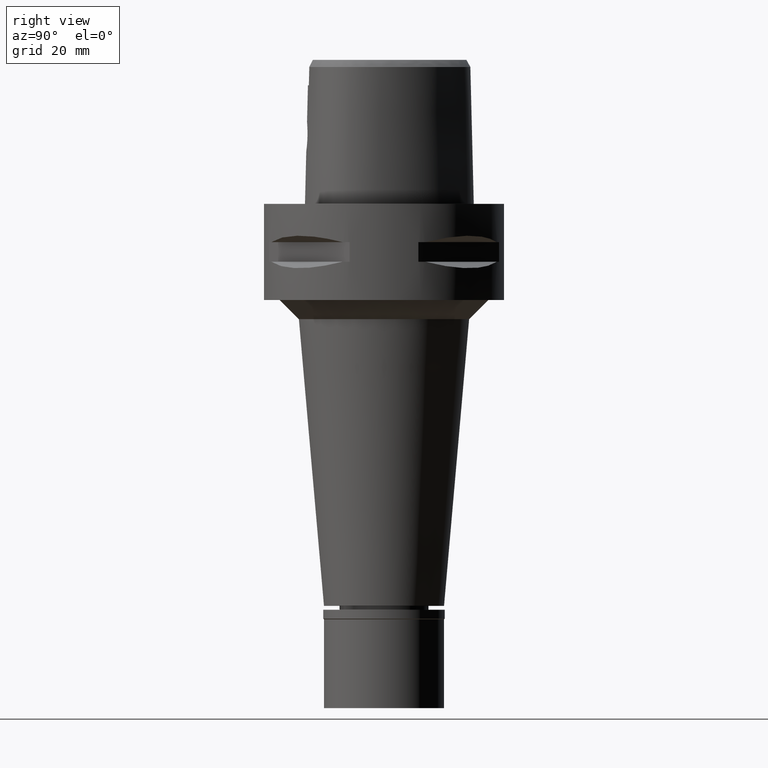
[diagram: clean part render]
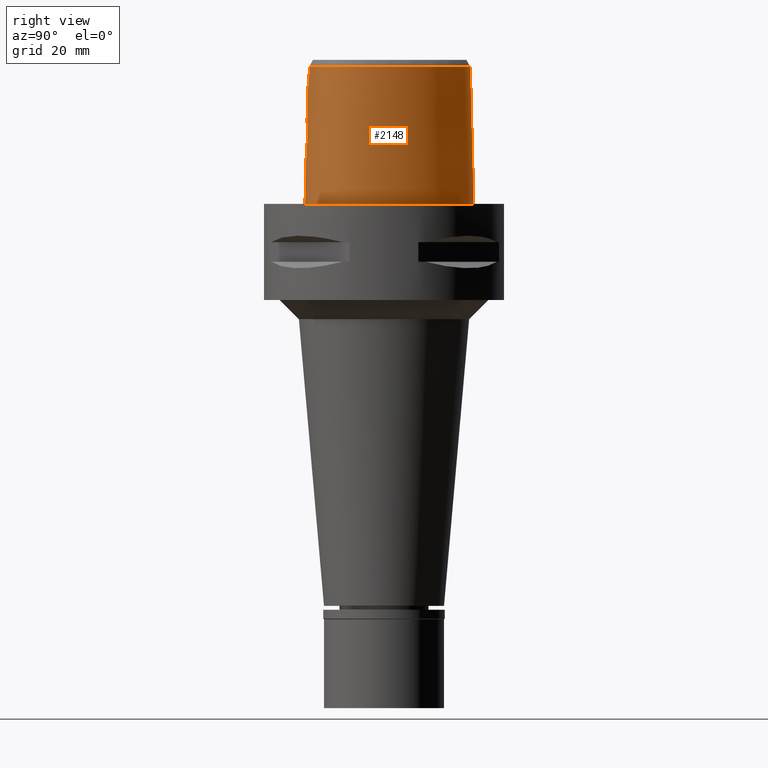
[diagram: same view with one face highlighted and labeled with its STEP entity id]
A machine part, right view. The second image highlights one B-rep face of the part: STEP entity #2148.
In plain terms, the highlighted face is a freeform B-spline surface patch.
Its self-contained STEP definition (entity closure, byte-faithful):
#17 = CARTESIAN_POINT ( 'NONE',  ( 2.196663950529426312, -15.96564993910013364, 16.11602529263612027 ) ) ;
#33 = CARTESIAN_POINT ( 'NONE',  ( -1.079551361476000171, -16.20136643864999826, 9.316773468527999924 ) ) ;
#44 = CARTESIAN_POINT ( 'NONE',  ( 2.290593162243965697, -16.06186194956454116, 11.98364703425937172 ) ) ;
#56 = CARTESIAN_POINT ( 'NONE',  ( 16.45596372243999994, -8.350972134411000170, 9.316773468527999924 ) ) ;
#68 = CARTESIAN_POINT ( 'NONE',  ( 2.744096643845215233, -16.00346064512505961, 12.66698413764604325 ) ) ;
#80 = CARTESIAN_POINT ( 'NONE',  ( 16.06260403385000046, 3.539545320991999589, 19.20396163921000010 ) ) ;
#96 = CARTESIAN_POINT ( 'NONE',  ( 16.66912846058657749, -8.445800798681265320, -1.712572970425946944E-06 ) ) ;
#100 = CARTESIAN_POINT ( 'NONE',  ( 1.893775678555451591, 17.84807068955595355, 28.52071728562181363 ) ) ;
#111 = CARTESIAN_POINT ( 'NONE',  ( 11.32630894537000010, -13.06981816489000003, 29.09114980990000277 ) ) ;
#124 = CARTESIAN_POINT ( 'NONE',  ( 11.68694518706978869, -13.70394534983113921, -1.712572970425946944E-06 ) ) ;
#132 = CARTESIAN_POINT ( 'NONE',  ( 15.78948629751999988, -9.116064163541999221, 19.20396163921000010 ) ) ;
#155 = CARTESIAN_POINT ( 'NONE',  ( 10.90668502998999934, 11.98047072297999982, 29.09114980990000277 ) ) ;
#210 = CARTESIAN_POINT ( 'NONE',  ( -0.3829342213868000555, 18.70352949264999864, -0.5704147021548000573 ) ) ;
#234 = CARTESIAN_POINT ( 'NONE',  ( -0.5293535089340000166, 17.95181569849000169, 29.09114980990000277 ) ) ;
#291 = CARTESIAN_POINT ( 'NONE',  ( -0.5593289285251999976, 18.44521839177000189, 9.316773468527999924 ) ) ;
#306 = EDGE_CURVE ( 'NONE', #4281, #4221, #4899, .T. ) ;
#331 = CARTESIAN_POINT ( 'NONE',  ( 2.030224829794000080E-07, -15.83752876601000281, 24.70000006102999990 ) ) ;
#361 = CARTESIAN_POINT ( 'NONE',  ( 2.638828814086501495, -16.01860464026841413, 12.46732066277610507 ) ) ;
#374 = CARTESIAN_POINT ( 'NONE',  ( 3.168920890822999770, -15.55911073834000113, 28.52071374672999582 ) ) ;
#385 = CARTESIAN_POINT ( 'NONE',  ( 2.076784380858851531, -16.08390063340872445, 11.76594178764124621 ) ) ;
#396 = CARTESIAN_POINT ( 'NONE',  ( 5.053620743882999200, -16.16974068493999894, -0.5704147021548000573 ) ) ;
#406 = CARTESIAN_POINT ( 'NONE',  ( 2.356615372638850125, -15.95714923954085585, 15.93698914121854315 ) ) ;
#429 = CARTESIAN_POINT ( 'NONE',  ( 2.587629427706296781, -16.02556131009806961, 12.38252332209277640 ) ) ;
#440 = CARTESIAN_POINT ( 'NONE',  ( 7.668807702640000556, 15.44980313143000039, 19.20396163921000010 ) ) ;
#451 = CARTESIAN_POINT ( 'NONE',  ( 2.130834279645530849, -16.07853149005607563, 11.81777582520600411 ) ) ;
#464 = CARTESIAN_POINT ( 'NONE',  ( 17.08644817472000099, -5.387673897245999655, 19.20396163921000010 ) ) ;
#488 = CARTESIAN_POINT ( 'NONE',  ( 4.628819261589999456, 17.52182795262000070, 9.316773468527999924 ) ) ;
#512 = CARTESIAN_POINT ( 'NONE',  ( 14.25868486921999967, -10.78027800493000221, 29.09114980990000277 ) ) ;
#527 = CARTESIAN_POINT ( 'NONE',  ( 8.702202469521859385, -14.36510984286242198, 28.52071728562181363 ) ) ;
#535 = CARTESIAN_POINT ( 'NONE',  ( 16.00353252464999798, -8.149703169692999793, 29.09114980990000277 ) ) ;
#550 = CARTESIAN_POINT ( 'NONE',  ( 5.902447799197284795, -15.16907841529120837, 28.52071728562181363 ) ) ;
#559 = ORIENTED_EDGE ( 'NONE', *, *, #701, .F. ) ;
#560 = CARTESIAN_POINT ( 'NONE',  ( 5.051093175161595283, -16.15562504237435704, -1.712572970425946944E-06 ) ) ;
#577 = CARTESIAN_POINT ( 'NONE',  ( 14.26907046693000503, -10.79012245165138495, 28.52071728562181363 ) ) ;
#588 = CARTESIAN_POINT ( 'NONE',  ( 0.0000000000000000000, -16.02877864023999877, 17.05000000000000071 ) ) ;
#600 = DIRECTION ( 'NONE',  ( -1.379466841460966450E-12, -0.02499051295371941192, -0.9996876883618752707 ) ) ;
#620 = VERTEX_POINT ( 'NONE', #3812 ) ;
#632 = CARTESIAN_POINT ( 'NONE',  ( 0.7741482008191986619, -16.02257322970520903, 16.98085959781949938 ) ) ;
#676 = VERTEX_POINT ( 'NONE', #745 ) ;
#677 = CARTESIAN_POINT ( 'NONE',  ( 6.782388194019119664E-08, -15.90128720080305769, 22.15000025259107730 ) ) ;
#701 = EDGE_CURVE ( 'NONE', #3409, #676, #3070, .T. ) ;
#727 = CARTESIAN_POINT ( 'NONE',  ( 2.223227574825688890, -16.06911398227925147, 11.90960399256264957 ) ) ;
#745 = CARTESIAN_POINT ( 'NONE',  ( 0.0000000000000000000, -16.02877864023999877, 17.05000000000000071 ) ) ;
#754 = CARTESIAN_POINT ( 'NONE',  ( 2.759961640973260355, -15.93564958624568639, 15.30749493561489061 ) ) ;
#765 = CARTESIAN_POINT ( 'NONE',  ( 1.309813751711999874, -16.25411916882000085, 9.316773468527999924 ) ) ;
#775 = CARTESIAN_POINT ( 'NONE',  ( 2.681016418395044454, -15.93974068711152547, 15.46783011061541302 ) ) ;
#795 = CARTESIAN_POINT ( 'NONE',  ( 1.935527014327847573, -16.09705987419036788, 11.64218429700401636 ) ) ;
#808 = CARTESIAN_POINT ( 'NONE',  ( 8.697311531923999084, -14.35163114142999952, 29.09114980990000277 ) ) ;
#827 = CARTESIAN_POINT ( 'NONE',  ( 3.044506884776515321, -15.94333381584075582, 13.81108558313461110 ) ) ;
#839 = CARTESIAN_POINT ( 'NONE',  ( 15.05961623353999990, -9.784614131969000539, 29.09114980990000277 ) ) ;
#842 = CARTESIAN_POINT ( 'NONE',  ( -3.094717981753000019E-11, 17.98202997909999823, 28.52071728569000086 ) ) ;
#860 = CARTESIAN_POINT ( 'NONE',  ( 7.514850653110999978, 15.25369620404999971, 29.09114980990000277 ) ) ;
#888 = CARTESIAN_POINT ( 'NONE',  ( 4.522582258493999419, 17.29581182580999865, 19.20396163921000010 ) ) ;
#915 = CARTESIAN_POINT ( 'NONE',  ( 1.890839651412000055, 17.83402853085000217, 29.09114980990000277 ) ) ;
#934 = CARTESIAN_POINT ( 'NONE',  ( 7.822764752169000246, 15.64591005881000108, 9.316773468527999924 ) ) ;
#937 = CARTESIAN_POINT ( 'NONE',  ( 1.262794661676007513, -16.00712763199256727, 16.77676499123157683 ) ) ;
#943 = ORIENTED_EDGE ( 'NONE', *, *, #2906, .T. ) ;
#952 = CARTESIAN_POINT ( 'NONE',  ( 7.967839690892272841, 15.83070315896293856, -1.712572970425946944E-06 ) ) ;
#990 = CARTESIAN_POINT ( 'NONE',  ( 3.191384142201736829, -15.58827398948734633, 27.24714251809000132 ) ) ;
#1025 = CARTESIAN_POINT ( 'NONE',  ( 0.0000000000000000000, -16.02877864023999877, 17.05000000000000071 ) ) ;
#1129 = CARTESIAN_POINT ( 'NONE',  ( 2.417729193041619151, -16.04731727844056266, 12.13798983179893654 ) ) ;
#1156 = CARTESIAN_POINT ( 'NONE',  ( 2.824468722466921378, -15.93300016794371388, 15.15105085638172078 ) ) ;
#1175 = CARTESIAN_POINT ( 'NONE',  ( 1.120763508486769089, -16.15358090583465867, 11.16333240776580382 ) ) ;
#1185 = CARTESIAN_POINT ( 'NONE',  ( 8.951632340974999380, -15.05250171780999757, -0.5704147021548000573 ) ) ;
#1199 = CARTESIAN_POINT ( 'NONE',  ( 1.306758668661503142, -16.14399373876849353, 11.23972581488374622 ) ) ;
#1212 = CARTESIAN_POINT ( 'NONE',  ( 11.47659488513999904, 12.46143684857000089, -0.5704147021548000573 ) ) ;
#1227 = CARTESIAN_POINT ( 'NONE',  ( 3.041209740384549498, -15.94490574327321575, 13.76368115324908459 ) ) ;
#1239 = CARTESIAN_POINT ( 'NONE',  ( 16.77753613662000021, -0.3562823046601999999, 29.09114980990000277 ) ) ;
#1244 = B_SPLINE_CURVE_WITH_KNOTS ( 'NONE', 3,
 ( #3374, #677, #4457, #1025 ),
 .UNSPECIFIED., .F., .F.,
 ( 4, 4 ),
 ( 0.0000000000000000000, 1.000000000000000000 ),
 .UNSPECIFIED. ) ;
#1253 = CARTESIAN_POINT ( 'NONE',  ( 17.49754716545705335, -0.2285937424829797004, -1.712572970425946944E-06 ) ) ;
#1255 = CARTESIAN_POINT ( 'NONE',  ( 3.168920890822999770, -15.55911073834000113, 28.52071374672999582 ) ) ;
#1261 = CARTESIAN_POINT ( 'NONE',  ( 17.51166498555000217, -0.2260900528497000184, -0.5704147021548000573 ) ) ;
#1285 = CARTESIAN_POINT ( 'NONE',  ( 17.47781018003999876, -3.270737581875000188, 9.316773468527999924 ) ) ;
#1314 = CARTESIAN_POINT ( 'NONE',  ( 17.17866842940000183, -7.169980044639999939, -0.5704147021548000573 ) ) ;
#1329 = CARTESIAN_POINT ( 'NONE',  ( 16.99625257117403265, -3.273868232426961900, 28.52071728562181363 ) ) ;
#1335 = CARTESIAN_POINT ( 'NONE',  ( 0.4640361004574999892, 18.23425881093000100, 19.20396163921000010 ) ) ;
#1358 = CARTESIAN_POINT ( 'NONE',  ( 1.399412083726095490, -16.00233608542867714, 16.71046994217811843 ) ) ;
#1411 = CARTESIAN_POINT ( 'NONE',  ( -0.3730031645781000105, 18.45651544109000142, 9.316773468527999924 ) ) ;
#1444 = CARTESIAN_POINT ( 'NONE',  ( -2.149496932726999772E-12, -16.18126839358999902, 10.94999999999999929 ) ) ;
#1495 = EDGE_LOOP ( 'NONE', ( #2110, #4108, #3309, #943, #4406, #559, #3206, #2147 ) ) ;
#1502 = CARTESIAN_POINT ( 'NONE',  ( 3.027798455715707160, -15.95003164277662400, 13.62032956274716966 ) ) ;
#1524 = CARTESIAN_POINT ( 'NONE',  ( 2.806282367902104280, -15.99380854387472084, 12.80500890572250405 ) ) ;
#1552 = CARTESIAN_POINT ( 'NONE',  ( 1.150837130458092217, -16.15205889506641412, 11.17544410961279056 ) ) ;
#1564 = CARTESIAN_POINT ( 'NONE',  ( -0.7074880708087000203, -15.72098110852000019, 29.09114980990000277 ) ) ;
#1575 = CARTESIAN_POINT ( 'NONE',  ( 2.141618861871738222, -16.07744231414373814, 11.82835874812550792 ) ) ;
#1587 = CARTESIAN_POINT ( 'NONE',  ( 16.84071406344000010, -5.352498112908000039, 29.09114980990000277 ) ) ;
#1602 = CARTESIAN_POINT ( 'NONE',  ( 2.044225401073498816, -16.08701963945086533, 11.73626748625702731 ) ) ;
#1614 = CARTESIAN_POINT ( 'NONE',  ( 17.26695536924000152, -0.2694874701199000411, 9.316773468527999924 ) ) ;
#1635 = CARTESIAN_POINT ( 'NONE',  ( 15.58740368722525993, -8.999391713747247223, 28.52071728562181363 ) ) ;
#1642 = CARTESIAN_POINT ( 'NONE',  ( 15.46013587366000053, -10.07579656024000059, 9.316773468527999924 ) ) ;
#1656 = CARTESIAN_POINT ( 'NONE',  ( 13.50690096135295271, -12.48264651818617565, -1.712572970425946944E-06 ) ) ;
#1662 = CARTESIAN_POINT ( 'NONE',  ( 16.46533702641000119, -6.958244285866999945, 29.09114980990000277 ) ) ;
#1673 = CARTESIAN_POINT ( 'NONE',  ( 17.71143739855751065, -3.269218749721410688, -1.712572970425946944E-06 ) ) ;
#1687 = CARTESIAN_POINT ( 'NONE',  ( 0.4897519513800999702, 18.72964555625000216, -0.5704147021548000573 ) ) ;
#1691 = CARTESIAN_POINT ( 'NONE',  ( 1.354452607727719693, -16.00396228356807526, 16.73322745257438982 ) ) ;
#1702 = CARTESIAN_POINT ( 'NONE',  ( 14.78833383517904920, -11.28232913111573588, -1.712572970425946944E-06 ) ) ;
#1736 = CARTESIAN_POINT ( 'NONE',  ( 3.235096591086000117, -15.64751801257999908, 24.70000006080999810 ) ) ;
#1850 = CARTESIAN_POINT ( 'NONE',  ( 11.69401646427999886, -13.71637917814000041, -0.5704147021548000573 ) ) ;
#1877 = CARTESIAN_POINT ( 'NONE',  ( -0.7264497208320001009, -16.46229666006999892, -0.5704147021548000573 ) ) ;
#1884 = VERTEX_POINT ( 'NONE', #2590 ) ;
#1890 = CARTESIAN_POINT ( 'NONE',  ( 1.078575942914911989, -16.15565394761469875, 11.14687127074764916 ) ) ;
#1909 = CARTESIAN_POINT ( 'NONE',  ( 7.243243713501998717E-11, 18.69499999997999851, 1.586508702188999830E-13 ) ) ;
#1911 = CARTESIAN_POINT ( 'NONE',  ( 2.164021906619612690, -15.96736812113674198, 16.14931344321803408 ) ) ;
#1920 = CARTESIAN_POINT ( 'NONE',  ( 5.009809421175999589, -15.92506881255000017, 9.316773468527999924 ) ) ;
#1935 = CARTESIAN_POINT ( 'NONE',  ( 2.775961287962938506, -15.99857004330711518, 12.73620107527709244 ) ) ;
#1960 = CARTESIAN_POINT ( 'NONE',  ( 2.014841840659067795, -15.97504399877427339, 16.29192479722134479 ) ) ;
#1973 = CARTESIAN_POINT ( 'NONE',  ( 13.05575605802000005, -11.90823712939999979, 29.09114980990000277 ) ) ;
#1986 = CARTESIAN_POINT ( 'NONE',  ( 2.829313881745447734, -15.93280562740808470, 15.13908937170597291 ) ) ;
#1998 = CARTESIAN_POINT ( 'NONE',  ( 17.22987929984000033, -3.272349403456999983, 19.20396163921000010 ) ) ;
#2014 = CARTESIAN_POINT ( 'NONE',  ( 13.75951381385860905, 7.944084035686260314, 28.52071728562181363 ) ) ;
#2023 = CARTESIAN_POINT ( 'NONE',  ( 14.79871907723000035, -11.29217324070999950, -0.5704147021548000573 ) ) ;
#2025 = VERTEX_POINT ( 'NONE', #3417 ) ;
#2031 = CARTESIAN_POINT ( 'NONE',  ( 3.235096591086000117, -15.64751801257999908, 24.70000006080999810 ) ) ;
#2049 = CARTESIAN_POINT ( 'NONE',  ( 11.09665498171000131, 12.14079276483999870, 19.20396163921000010 ) ) ;
#2065 = CARTESIAN_POINT ( 'NONE',  ( 3.738627708318751353, -15.49270856215235703, 28.52071728562181363 ) ) ;
#2071 = CARTESIAN_POINT ( 'NONE',  ( 17.33218228601000277, -5.422849681585000248, 9.316773468527999924 ) ) ;
#2095 = CARTESIAN_POINT ( 'NONE',  ( 0.4768940259187999797, 18.48195218358999981, 9.316773468527999924 ) ) ;
#2098 = CARTESIAN_POINT ( 'NONE',  ( 1.859549321997236992, -15.98255794229956273, 16.41807320997656205 ) ) ;
#2106 = VERTEX_POINT ( 'NONE', #374 ) ;
#2110 = ORIENTED_EDGE ( 'NONE', *, *, #3072, .F. ) ;
#2124 = CARTESIAN_POINT ( 'NONE',  ( 3.168920890822999770, -15.55911073834000113, 28.52071374672999582 ) ) ;
#2139 = CARTESIAN_POINT ( 'NONE',  ( -2.149496932726999772E-12, -16.18126839358999902, 10.94999999999999929 ) ) ;
#2147 = ORIENTED_EDGE ( 'NONE', *, *, #306, .T. ) ;
#2148 = ADVANCED_FACE ( 'NONE', ( #4613 ), #3416, .T. ) ;
#2198 = CARTESIAN_POINT ( 'NONE',  ( -0.3630721077694000209, 18.20950138952999708, 19.20396163921000010 ) ) ;
#2207 = EDGE_CURVE ( 'NONE', #620, #2106, #4579, .T. ) ;
#2266 = CARTESIAN_POINT ( 'NONE',  ( 0.9939297242885032357, -16.15959612542590662, 11.11569146158375077 ) ) ;
#2293 = CARTESIAN_POINT ( 'NONE',  ( 2.262444582314413033, -15.96216938760132464, 16.04565077979857790 ) ) ;
#2303 = CARTESIAN_POINT ( 'NONE',  ( 1.298308556494000010, -16.00668749134000279, 19.20396163921000010 ) ) ;
#2315 = CARTESIAN_POINT ( 'NONE',  ( 2.520317714005605225, -15.94834054842958793, 15.72060082174885132 ) ) ;
#2338 = CARTESIAN_POINT ( 'NONE',  ( 2.232748692361829157, -15.96374470980125082, 16.07819212816551513 ) ) ;
#2359 = VECTOR ( 'NONE', #3492, 1000.000000000000227 ) ;
#2367 = CARTESIAN_POINT ( 'NONE',  ( 3.048883421515427461, -15.94046337244652278, 13.90502257973829181 ) ) ;
#2378 = CARTESIAN_POINT ( 'NONE',  ( 16.94089129506999925, -7.099401458383000296, 9.316773468527999924 ) ) ;
#2393 = CARTESIAN_POINT ( 'NONE',  ( 4.422474504766133130, 17.08283549833607395, 28.52071728562181363 ) ) ;
#2402 = CARTESIAN_POINT ( 'NONE',  ( 11.28662493341999884, 12.30111480671000024, 9.316773468527999924 ) ) ;
#2428 = CARTESIAN_POINT ( 'NONE',  ( 11.57144729131000105, -13.50085884039000028, 9.316773468527999924 ) ) ;
#2450 = CARTESIAN_POINT ( 'NONE',  ( 7.523733068098669818, 15.26501041873698483, 28.52071728562181363 ) ) ;
#2456 = CARTESIAN_POINT ( 'NONE',  ( 15.66039569371999818, -10.22138777438000012, -0.5704147021548000573 ) ) ;
#2469 = CARTESIAN_POINT ( 'NONE',  ( 11.46563511313802941, 12.45218752777073590, -1.712572970425946944E-06 ) ) ;
#2472 = CARTESIAN_POINT ( 'NONE',  ( 16.79165444020004472, -0.3537785292841048035, 28.52071728562181363 ) ) ;
#2556 = CARTESIAN_POINT ( 'NONE',  ( 1.737183591012293693, -15.98828192606207743, 16.50739953107601821 ) ) ;
#2583 = EDGE_CURVE ( 'NONE', #1884, #2106, #2696, .T. ) ;
#2590 = CARTESIAN_POINT ( 'NONE',  ( -3.094717981753000019E-11, 17.98202997909999823, 28.52071728569000086 ) ) ;
#2614 = VECTOR ( 'NONE', #600, 1000.000000000000114 ) ;
#2634 = CARTESIAN_POINT ( 'NONE',  ( -1.060560759037000089, -15.70738087740999944, 29.09114980990000277 ) ) ;
#2668 = CARTESIAN_POINT ( 'NONE',  ( 3.014162081768898105, -15.95399573205361854, 13.52323755265707206 ) ) ;
#2683 = CARTESIAN_POINT ( 'NONE',  ( -0.7201291708241999157, -16.21519147622000290, 9.316773468527999924 ) ) ;
#2684 = EDGE_CURVE ( 'NONE', #3409, #4281, #3693, .T. ) ;
#2696 = B_SPLINE_CURVE_WITH_KNOTS ( 'NONE', 3,
 ( #3909, #4652, #100, #2393, #2450, #3250, #2014, #3552, #2472, #1329, #4309, #3984, #2867, #1635, #3964, #577, #4382, #4678, #527, #550, #2065, #1255 ),
 .UNSPECIFIED., .F., .F.,
 ( 4, 1, 1, 1, 1, 1, 1, 1, 1, 1, 1, 1, 1, 1, 1, 1, 1, 1, 1, 4 ),
 ( 0.0000000000000000000, 0.04404152929334096550, 0.08808305858551911116, 0.1761661171698756245, 0.2642491757542321240, 0.3523322343385886790, 0.4404152929230508162, 0.5284983515074073157, 0.5725398807995856210, 0.6165814100917637042, 0.6606229393839421205, 0.6826437040300311621, 0.7046644686762260079, 0.7266852333222094673, 0.7487059979682985089, 0.7927475272605825074, 0.8367890565527607016, 0.8808305858448333137, 0.9689136444292953954, 1.000000000000000000 ),
 .UNSPECIFIED. ) ;
#2697 = CARTESIAN_POINT ( 'NONE',  ( 2.951306861662620573, -15.92924742299003960, 14.77626636585411646 ) ) ;
#2715 = CARTESIAN_POINT ( 'NONE',  ( 2.114644142901446422, -16.08015782783983383, 11.80200641014713270 ) ) ;
#2724 = CARTESIAN_POINT ( 'NONE',  ( 8.866858737958001058, -14.81887819235000059, 9.316773468527999924 ) ) ;
#2731 = CARTESIAN_POINT ( 'NONE',  ( 2.169052010910632156, -15.77399788591396579, 24.70000016056459557 ) ) ;
#2740 = CARTESIAN_POINT ( 'NONE',  ( 2.899217746531571382, -15.97873758491098783, 13.02871175161756589 ) ) ;
#2750 = CARTESIAN_POINT ( 'NONE',  ( 15.25987605359999932, -9.930205346103999631, 19.20396163921000010 ) ) ;
#2769 = CARTESIAN_POINT ( 'NONE',  ( 3.050149896193000476, -15.93316336324772386, 14.18941404704232312 ) ) ;
#2778 = CARTESIAN_POINT ( 'NONE',  ( 13.20908634294000095, -12.10346122390000012, 19.20396163921000010 ) ) ;
#2789 = CARTESIAN_POINT ( 'NONE',  ( 7.243243713501998717E-11, 18.69499999997999851, 1.586508702188999830E-13 ) ) ;
#2791 = EDGE_CURVE ( 'NONE', #2025, #676, #1244, .T. ) ;
#2799 = CARTESIAN_POINT ( 'NONE',  ( 2.043508293084000282, 18.56419796998999772, -0.5704147021548000573 ) ) ;
#2826 = CARTESIAN_POINT ( 'NONE',  ( 16.98194841963999835, -3.273961225039000222, 29.09114980990000277 ) ) ;
#2851 = CARTESIAN_POINT ( 'NONE',  ( 16.22974812355000296, -8.250337652051999981, 19.20396163921000010 ) ) ;
#2852 = CARTESIAN_POINT ( 'NONE',  ( -1.725937783839000138E-11, -16.45500000000000185, 1.598351081118999833E-13 ) ) ;
#2866 = CARTESIAN_POINT ( 'NONE',  ( 15.64884227724995469, -10.21298830647458722, -1.712572970425946944E-06 ) ) ;
#2867 = CARTESIAN_POINT ( 'NONE',  ( 16.01658383235081473, -8.155509186612112771, 28.52071728562181363 ) ) ;
#2906 = EDGE_CURVE ( 'NONE', #620, #2025, #3702, .T. ) ;
#3040 = CARTESIAN_POINT ( 'NONE',  ( 0.3842297570381691396, -16.17878268541348064, 10.96777226348872958 ) ) ;
#3046 = CARTESIAN_POINT ( 'NONE',  ( 1.719191830015878608, -16.11523926597523726, 11.47872671523162325 ) ) ;
#3063 = CARTESIAN_POINT ( 'NONE',  ( -2.149496932726999772E-12, -16.18126839358999902, 10.94999999999999929 ) ) ;
#3070 = B_SPLINE_CURVE_WITH_KNOTS ( 'NONE', 3,
 ( #3063, #4178, #3040, #4205, #4524, #3501, #2266, #1890, #1175, #4600, #1552, #3119, #1199, #3794, #3046, #3881, #795, #4650, #1602, #385, #2715, #451, #1575, #4550, #727, #44, #1129, #4623, #429, #361, #3146, #68, #1935, #3834, #1524, #2740, #4259, #2668, #1502, #1227, #827, #2367, #3071, #2769, #4956, #3429, #2697, #4574, #4231, #4210, #4184, #1986, #1156, #3523, #754, #775, #2315, #4933, #406, #3475, #2293, #2338, #17, #3815, #3098, #1911, #3856, #1960, #3452, #2098, #4067, #2556, #4760, #3261, #1358, #1691, #937, #4390, #632, #4017, #588 ),
 .UNSPECIFIED., .F., .F.,
 ( 4, 2, 2, 1, 1, 1, 2, 2, 2, 2, 2, 1, 1, 2, 2, 2, 2, 2, 1, 2, 2, 2, 2, 2, 2, 2, 2, 1, 1, 1, 2, 2, 2, 2, 2, 1, 1, 2, 2, 2, 2, 2, 2, 2, 2, 4 ),
 ( 0.0000000000000000000, 0.06249999999999365785, 0.09374999999999047984, 0.1093749999999888700, 0.1171874999999880929, 0.1210937499999875655, 0.1230468749999872879, 0.1249999999999870243, 0.1874999999999834854, 0.2187499999999817368, 0.2343749999999807376, 0.2421874999999802935, 0.2460937499999800715, 0.2480468749999800715, 0.2499999999999800715, 0.2812499999999800715, 0.3124999999999800715, 0.3437499999999800715, 0.3593749999999800715, 0.3671874999999797939, 0.3749999999999794609, 0.4374999999999764633, 0.4687499999999749645, 0.4843749999999745204, 0.4999999999999740208, 0.5624999999999715783, 0.5937499999999700240, 0.6093749999999695799, 0.6171874999999695799, 0.6210937499999693578, 0.6230468749999693578, 0.6249999999999692468, 0.6874999999999720224, 0.7187499999999731326, 0.7343749999999737987, 0.7421874999999744649, 0.7460937499999747979, 0.7480468749999746869, 0.7499999999999745759, 0.7812499999999784617, 0.7968749999999800160, 0.8124999999999814593, 0.8437499999999846789, 0.8593749999999861222, 0.8749999999999873435, 1.000000000000000000 ),
 .UNSPECIFIED. ) ;
#3071 = CARTESIAN_POINT ( 'NONE',  ( 3.049961347112721377, -15.93921296701097923, 13.94964838113523165 ) ) ;
#3072 = EDGE_CURVE ( 'NONE', #1884, #4221, #4155, .T. ) ;
#3087 = CARTESIAN_POINT ( 'NONE',  ( -0.7138086208164999835, -15.96808629236999977, 19.20396163921000010 ) ) ;
#3098 = CARTESIAN_POINT ( 'NONE',  ( 2.170299400654050359, -15.96703807926083307, 16.14297866672072601 ) ) ;
#3109 = CARTESIAN_POINT ( 'NONE',  ( 4.922186775760000188, -15.43572506775999997, 29.09114980990000277 ) ) ;
#3119 = CARTESIAN_POINT ( 'NONE',  ( 1.158353828547319386, -16.15167258786864579, 11.17852165137631992 ) ) ;
#3129 = CARTESIAN_POINT ( 'NONE',  ( 13.74710207065999867, 7.936918613051998861, 29.09114980990000277 ) ) ;
#3146 = CARTESIAN_POINT ( 'NONE',  ( 2.709953204667776117, -16.00846021379442874, 12.59958595632848066 ) ) ;
#3156 = CARTESIAN_POINT ( 'NONE',  ( 14.39249255232000024, 8.309508948762999836, -0.5704147021548000573 ) ) ;
#3174 = CARTESIAN_POINT ( 'NONE',  ( 4.728927225217471886, 17.73480472664720864, -1.712572970425946944E-06 ) ) ;
#3183 = CARTESIAN_POINT ( 'NONE',  ( 16.70311416074000022, -7.028822872124999677, 19.20396163921000010 ) ) ;
#3205 = CARTESIAN_POINT ( 'NONE',  ( 14.61870767455999953, -11.12154149544999981, 9.316773468527999924 ) ) ;
#3206 = ORIENTED_EDGE ( 'NONE', *, *, #2684, .T. ) ;
#3219 = CARTESIAN_POINT ( 'NONE',  ( 16.51672828830004036, 3.703437514615576021, -1.712572970425946944E-06 ) ) ;
#3230 = CARTESIAN_POINT ( 'NONE',  ( 16.21839714802000287, -9.363695959252000378, -0.5704147021548000573 ) ) ;
#3250 = CARTESIAN_POINT ( 'NONE',  ( 10.91764517732670825, 11.98972036053689827, 28.52071728562181363 ) ) ;
#3261 = CARTESIAN_POINT ( 'NONE',  ( 1.531589067142498983, -15.99732691922906724, 16.63945844436470622 ) ) ;
#3309 = ORIENTED_EDGE ( 'NONE', *, *, #2207, .F. ) ;
#3334 = CARTESIAN_POINT ( 'NONE',  ( 0.4511781749961999988, 17.98656543826999865, 29.09114980990000277 ) ) ;
#3374 = CARTESIAN_POINT ( 'NONE',  ( 2.030224829794000080E-07, -15.83752876601000281, 24.70000006102999990 ) ) ;
#3409 = VERTEX_POINT ( 'NONE', #1444 ) ;
#3416 = B_SPLINE_SURFACE_WITH_KNOTS ( 'NONE', 3, 3, ( 
 ( #3488, #33, #3440, #2634 ),
 ( #1877, #2683, #3087, #1564 ),
 ( #4200, #765, #2303, #3823 ),
 ( #396, #1920, #3462, #3109 ),
 ( #1185, #2724, #4243, #808 ),
 ( #1850, #2428, #3533, #111 ),
 ( #3512, #4272, #2778, #1973 ),
 ( #2023, #3205, #4731, #512 ),
 ( #2456, #1642, #2750, #839 ),
 ( #3230, #3560, #132, #3970 ),
 ( #3893, #56, #2851, #535 ),
 ( #1314, #2378, #3183, #1662 ),
 ( #4363, #2071, #464, #1587 ),
 ( #4684, #1285, #1998, #2826 ),
 ( #1261, #1614, #3943, #1239 ),
 ( #3870, #3604, #80, #4635 ),
 ( #3156, #4662, #4706, #3129 ),
 ( #1212, #2402, #2049, #155 ),
 ( #4295, #934, #440, #860 ),
 ( #3918, #488, #888, #3583 ),
 ( #2799, #4316, #4340, #915 ),
 ( #1687, #2095, #1335, #3334 ),
 ( #210, #1411, #2198, #4065 ),
 ( #3729, #291, #4014, #234 ) ),
 .UNSPECIFIED., .F., .F., .F.,
 ( 4, 1, 1, 1, 1, 1, 1, 1, 1, 1, 1, 1, 1, 1, 1, 1, 1, 1, 1, 1, 1, 4 ),
 ( 4, 4 ),
 ( -0.01796851319148999940, 0.0000000000000000000, 0.08333333333350000094, 0.1666666666668000230, 0.2083333333333000081, 0.2499999999998999967, 0.2916666666666000163, 0.3124999999998999689, 0.3333333333331000015, 0.3541666666665000407, 0.3749999999997999933, 0.4166666666664000096, 0.4583333333330000259, 0.4999999999995999866, 0.5833333333328000192, 0.6666666666660999718, 0.7499999999993000044, 0.8333333333325000369, 0.9166666666657000695, 0.9583333333322999747, 1.000000000000000000, 1.011711214084999977 ),
 ( 9.489618570112998860E-10, 0.9999999516029000057 ),
 .UNSPECIFIED. ) ;
#3417 = CARTESIAN_POINT ( 'NONE',  ( 2.030224829794000080E-07, -15.83752876601000281, 24.70000006102999990 ) ) ;
#3429 = CARTESIAN_POINT ( 'NONE',  ( 2.975249651912822646, -15.92914271478721666, 14.67846616982686925 ) ) ;
#3440 = CARTESIAN_POINT ( 'NONE',  ( -1.070056060256000086, -15.95437365802999885, 19.20396163921000010 ) ) ;
#3452 = CARTESIAN_POINT ( 'NONE',  ( 1.898958778535287051, -15.98067541706731731, 16.38724889510307392 ) ) ;
#3462 = CARTESIAN_POINT ( 'NONE',  ( 4.965998098467999888, -15.68039694016000141, 19.20396163921000010 ) ) ;
#3475 = CARTESIAN_POINT ( 'NONE',  ( 2.320231428406521079, -15.95909571851455588, 15.98050410814317424 ) ) ;
#3488 = CARTESIAN_POINT ( 'NONE',  ( -1.089046662694999945, -16.44835921925999855, -0.5704147021548000573 ) ) ;
#3492 = DIRECTION ( 'NONE',  ( 3.623588048647890083E-12, 0.02499051285796925065, -0.9996876883642689116 ) ) ;
#3501 = CARTESIAN_POINT ( 'NONE',  ( 0.9209982704662519337, -16.16262558226604540, 11.09193420934339436 ) ) ;
#3512 = CARTESIAN_POINT ( 'NONE',  ( 13.51574691276999829, -12.49390941289999901, -0.5704147021548000573 ) ) ;
#3523 = CARTESIAN_POINT ( 'NONE',  ( 2.821425036078518467, -15.93312409536605578, 15.15848376097718031 ) ) ;
#3533 = CARTESIAN_POINT ( 'NONE',  ( 11.44887811833999969, -13.28533850264000016, 19.20396163921000010 ) ) ;
#3552 = CARTESIAN_POINT ( 'NONE',  ( 15.84228676733575192, 3.460033425849186273, 28.52071728562181363 ) ) ;
#3560 = CARTESIAN_POINT ( 'NONE',  ( 16.00394172277000138, -9.239880061397000688, 9.316773468527999924 ) ) ;
#3583 = CARTESIAN_POINT ( 'NONE',  ( 4.416345255398000269, 17.06979569900000016, 29.09114980990000277 ) ) ;
#3604 = CARTESIAN_POINT ( 'NONE',  ( 16.29641055984999909, 3.623925452757999821, 9.316773468527999924 ) ) ;
#3693 = LINE ( 'NONE', #2139, #2614 ) ;
#3702 = B_SPLINE_CURVE_WITH_KNOTS ( 'NONE', 3,
 ( #2031, #2731, #3924, #331 ),
 .UNSPECIFIED., .F., .F.,
 ( 4, 4 ),
 ( 0.0000000000000000000, 1.000000000000000000 ),
 .UNSPECIFIED. ) ;
#3729 = CARTESIAN_POINT ( 'NONE',  ( -0.5743166383208000436, 18.69191973840999665, -0.5704147021548000573 ) ) ;
#3794 = CARTESIAN_POINT ( 'NONE',  ( 1.466707760578695563, -16.13401281180648184, 11.31839107165520630 ) ) ;
#3812 = CARTESIAN_POINT ( 'NONE',  ( 3.235096591086000117, -15.64751801257999908, 24.70000006080999810 ) ) ;
#3815 = CARTESIAN_POINT ( 'NONE',  ( 2.180887052763814893, -15.96648089881372279, 16.13220278528723028 ) ) ;
#3823 = CARTESIAN_POINT ( 'NONE',  ( 1.286803361277000013, -15.75925581387000207, 29.09114980990000277 ) ) ;
#3834 = CARTESIAN_POINT ( 'NONE',  ( 2.796681338616599621, -15.99533385695102439, 12.78273984513034378 ) ) ;
#3856 = CARTESIAN_POINT ( 'NONE',  ( 2.088968113521981529, -15.97131126311717608, 16.22457167555463897 ) ) ;
#3870 = CARTESIAN_POINT ( 'NONE',  ( 16.53021708583999683, 3.708305584525000143, -0.5704147021548000573 ) ) ;
#3881 = CARTESIAN_POINT ( 'NONE',  ( 1.805376232587378116, -16.10834772480010813, 11.53923680359976878 ) ) ;
#3893 = CARTESIAN_POINT ( 'NONE',  ( 16.68217932134000137, -8.451606616771000446, -0.5704147021548000573 ) ) ;
#3906 = CARTESIAN_POINT ( 'NONE',  ( 2.040572366481876454, 18.55015629216421402, -1.712572970425946944E-06 ) ) ;
#3909 = CARTESIAN_POINT ( 'NONE',  ( -3.094717981753000019E-11, 17.98202997909999823, 28.52071728569000086 ) ) ;
#3918 = CARTESIAN_POINT ( 'NONE',  ( 4.735056264687000471, 17.74784407942999920, -0.5704147021548000573 ) ) ;
#3924 = CARTESIAN_POINT ( 'NONE',  ( 1.084489111476547585, -15.83754148653971860, 24.70000016056459557 ) ) ;
#3943 = CARTESIAN_POINT ( 'NONE',  ( 17.02224575293000086, -0.3128848873899999772, 19.20396163921000010 ) ) ;
#3964 = CARTESIAN_POINT ( 'NONE',  ( 15.07117004567507834, -9.793013887527203920, 28.52071728562181363 ) ) ;
#3970 = CARTESIAN_POINT ( 'NONE',  ( 15.57503087227999927, -8.992248265686999531, 29.09114980990000277 ) ) ;
#3983 = CARTESIAN_POINT ( 'NONE',  ( 14.38008123416606487, 8.302343771511633719, -1.712572970425946944E-06 ) ) ;
#3984 = CARTESIAN_POINT ( 'NONE',  ( 16.47905536661046710, -6.962316254603114096, 28.52071728562181363 ) ) ;
#3992 = CARTESIAN_POINT ( 'NONE',  ( 1.683697725056120698, -16.45500004281124262, -1.712572970425946733E-06 ) ) ;
#4014 = CARTESIAN_POINT ( 'NONE',  ( -0.5443412187296000626, 18.19851704513000001, 19.20396163921000010 ) ) ;
#4017 = CARTESIAN_POINT ( 'NONE',  ( 0.3724840145390407309, -16.02877864023999877, 17.04999999999999361 ) ) ;
#4065 = CARTESIAN_POINT ( 'NONE',  ( -0.3531410509606999759, 17.96248733796999986, 29.09114980990000277 ) ) ;
#4067 = CARTESIAN_POINT ( 'NONE',  ( 1.779262221764184693, -15.98633376436653464, 16.47774649146145620 ) ) ;
#4108 = ORIENTED_EDGE ( 'NONE', *, *, #2583, .T. ) ;
#4155 = LINE ( 'NONE', #842, #2359 ) ;
#4178 = CARTESIAN_POINT ( 'NONE',  ( 0.1898211197373668446, -16.18126839358999902, 10.94999999999999751 ) ) ;
#4184 = CARTESIAN_POINT ( 'NONE',  ( 2.836520581861567081, -15.93251973351802242, 15.12113420123081298 ) ) ;
#4200 = CARTESIAN_POINT ( 'NONE',  ( 1.321318946929000093, -16.50155084629000157, -0.5704147021548000573 ) ) ;
#4205 = CARTESIAN_POINT ( 'NONE',  ( 0.6770584128772033639, -16.17132556088388995, 11.02443681068311676 ) ) ;
#4210 = CARTESIAN_POINT ( 'NONE',  ( 2.852909278454516251, -15.93189406616819781, 15.07915126970514486 ) ) ;
#4221 = VERTEX_POINT ( 'NONE', #1909 ) ;
#4229 = CARTESIAN_POINT ( 'NONE',  ( -1.725937783839000138E-11, -16.45500000000000185, 1.598351081118999833E-13 ) ) ;
#4231 = CARTESIAN_POINT ( 'NONE',  ( 2.883981873338816282, -15.93080840504316598, 14.99485968243841150 ) ) ;
#4243 = CARTESIAN_POINT ( 'NONE',  ( 8.782085134941000959, -14.58525466689000005, 19.20396163921000010 ) ) ;
#4259 = CARTESIAN_POINT ( 'NONE',  ( 2.957688824804170391, -15.96752846870872666, 13.22897551199208266 ) ) ;
#4272 = CARTESIAN_POINT ( 'NONE',  ( 13.36241662786000006, -12.29868531839999868, 9.316773468527999924 ) ) ;
#4281 = VERTEX_POINT ( 'NONE', #4229 ) ;
#4286 = CARTESIAN_POINT ( 'NONE',  ( 8.946741570869303217, -15.03902347796123529, -1.712572970425946944E-06 ) ) ;
#4295 = CARTESIAN_POINT ( 'NONE',  ( 7.976721801697999048, 15.84201698619000176, -0.5704147021548000573 ) ) ;
#4307 = CARTESIAN_POINT ( 'NONE',  ( 0.6801907889186218359, 18.69500004281214345, -1.712572970425946944E-06 ) ) ;
#4309 = CARTESIAN_POINT ( 'NONE',  ( 16.85489147434579849, -5.354527548487358679, 28.52071728562181363 ) ) ;
#4316 = CARTESIAN_POINT ( 'NONE',  ( 1.992618745859999985, 18.32080815694000009, 9.316773468527999924 ) ) ;
#4340 = CARTESIAN_POINT ( 'NONE',  ( 1.941729198635999909, 18.07741834389000246, 19.20396163921000010 ) ) ;
#4363 = CARTESIAN_POINT ( 'NONE',  ( 17.57791639729000011, -5.458025465922999864, -0.5704147021548000573 ) ) ;
#4381 = CARTESIAN_POINT ( 'NONE',  ( 17.56373947189545603, -5.455996099842496783, -1.712572970425946944E-06 ) ) ;
#4382 = CARTESIAN_POINT ( 'NONE',  ( 13.06460231238122560, -11.91950040982948344, 28.52071728562181363 ) ) ;
#4390 = CARTESIAN_POINT ( 'NONE',  ( 1.217867162102865608, -16.00861105600192857, 16.79681041045230216 ) ) ;
#4406 = ORIENTED_EDGE ( 'NONE', *, *, #2791, .T. ) ;
#4442 = CARTESIAN_POINT ( 'NONE',  ( 3.213444788215948034, -15.61774735051721308, 25.97357128944999971 ) ) ;
#4457 = CARTESIAN_POINT ( 'NONE',  ( 6.797911673388231572E-08, -15.96503292052294398, 19.60000012629557986 ) ) ;
#4524 = CARTESIAN_POINT ( 'NONE',  ( 0.7748558813810018098, -16.16821842566323397, 11.04831638025931007 ) ) ;
#4550 = CARTESIAN_POINT ( 'NONE',  ( 2.147962331140050196, -16.07679769526338021, 11.83463701146478719 ) ) ;
#4574 = CARTESIAN_POINT ( 'NONE',  ( 2.907704111751937770, -15.93016185020670505, 14.92213459652817775 ) ) ;
#4579 = B_SPLINE_CURVE_WITH_KNOTS ( 'NONE', 3,
 ( #1736, #4442, #990, #2124 ),
 .UNSPECIFIED., .F., .F.,
 ( 4, 4 ),
 ( 0.0000000000000000000, 1.000000000000000000 ),
 .UNSPECIFIED. ) ;
#4600 = CARTESIAN_POINT ( 'NONE',  ( 1.138812104615412935, -16.15267061231297774, 11.17057442770736664 ) ) ;
#4613 = FACE_OUTER_BOUND ( 'NONE', #1495, .T. ) ;
#4623 = CARTESIAN_POINT ( 'NONE',  ( 2.478737183293503676, -16.03986208745135400, 12.22013516387799825 ) ) ;
#4635 = CARTESIAN_POINT ( 'NONE',  ( 15.82879750784999651, 3.455165189225000155, 29.09114980990000277 ) ) ;
#4650 = CARTESIAN_POINT ( 'NONE',  ( 1.979050802157140243, -16.09313883417927116, 11.67852903116019725 ) ) ;
#4652 = CARTESIAN_POINT ( 'NONE',  ( 0.6295828025428996666, 17.98202997637897482, 28.52071728562181363 ) ) ;
#4662 = CARTESIAN_POINT ( 'NONE',  ( 14.17736239176000090, 8.185312170193000725, 9.316773468527999924 ) ) ;
#4677 = CARTESIAN_POINT ( 'NONE',  ( 16.20602475678629517, -9.356552755822066914, -1.712572970425946944E-06 ) ) ;
#4678 = CARTESIAN_POINT ( 'NONE',  ( 11.33338046474729133, -13.08225241901499558, 28.52071728562181363 ) ) ;
#4684 = CARTESIAN_POINT ( 'NONE',  ( 17.72574106024000073, -3.269125760294000038, -0.5704147021548000573 ) ) ;
#4706 = CARTESIAN_POINT ( 'NONE',  ( 13.96223223121000068, 8.061115391622999837, 19.20396163921000010 ) ) ;
#4731 = CARTESIAN_POINT ( 'NONE',  ( 14.43869627189000049, -10.95090975019000012, 19.20396163921000010 ) ) ;
#4760 = CARTESIAN_POINT ( 'NONE',  ( 1.616099766049513997, -15.99381337938742043, 16.58846643699800083 ) ) ;
#4773 = CARTESIAN_POINT ( 'NONE',  ( 17.16495055898973376, -7.165908215350180299, -1.712572970425946944E-06 ) ) ;
#4899 = B_SPLINE_CURVE_WITH_KNOTS ( 'NONE', 3,
 ( #2852, #3992, #560, #4286, #124, #1656, #1702, #2866, #4677, #96, #4773, #4381, #1673, #1253, #3219, #3983, #2469, #952, #3174, #3906, #4307, #2789 ),
 .UNSPECIFIED., .F., .F.,
 ( 4, 1, 1, 1, 1, 1, 1, 1, 1, 1, 1, 1, 1, 1, 1, 1, 1, 1, 1, 4 ),
 ( 0.0000000000000000000, 0.08333333333350000094, 0.1666666666668000230, 0.2083333333333000081, 0.2499999999998999967, 0.2916666666666000163, 0.3124999999998999689, 0.3333333333331000015, 0.3541666666665000407, 0.3749999999997999933, 0.4166666666664000096, 0.4583333333330000259, 0.4999999999995999866, 0.5833333333328000192, 0.6666666666660999718, 0.7499999999993000044, 0.8333333333325000369, 0.9166666666657000695, 0.9583333333322999747, 1.000000000000000000 ),
 .UNSPECIFIED. ) ;
#4933 = CARTESIAN_POINT ( 'NONE',  ( 2.459696765391574225, -15.95161770387217004, 15.80683248070965163 ) ) ;
#4956 = CARTESIAN_POINT ( 'NONE',  ( 3.032153927794988491, -15.93034332000362063, 14.38503233290865246 ) ) ;